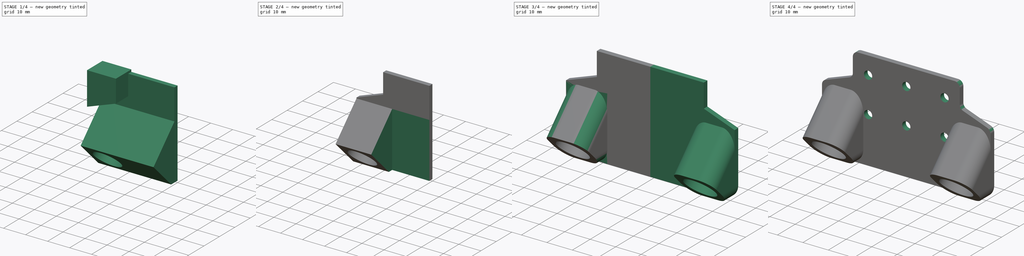
[diagram: build sequence overview — one tinted view per stage of 4, left to right]
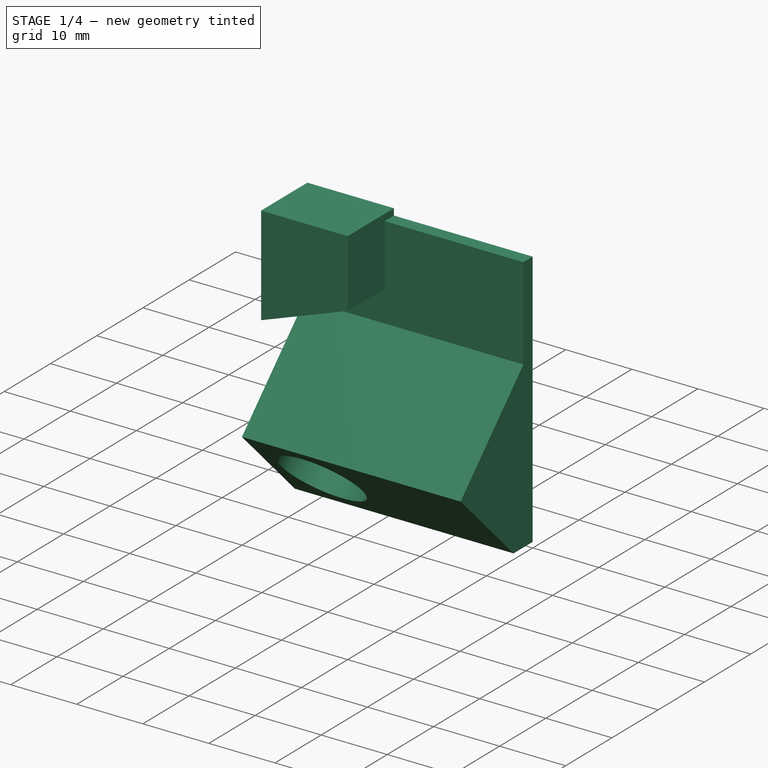
[diagram: stage 1 of 4 — iso view after this stage's code; geometry added in this stage tinted green]
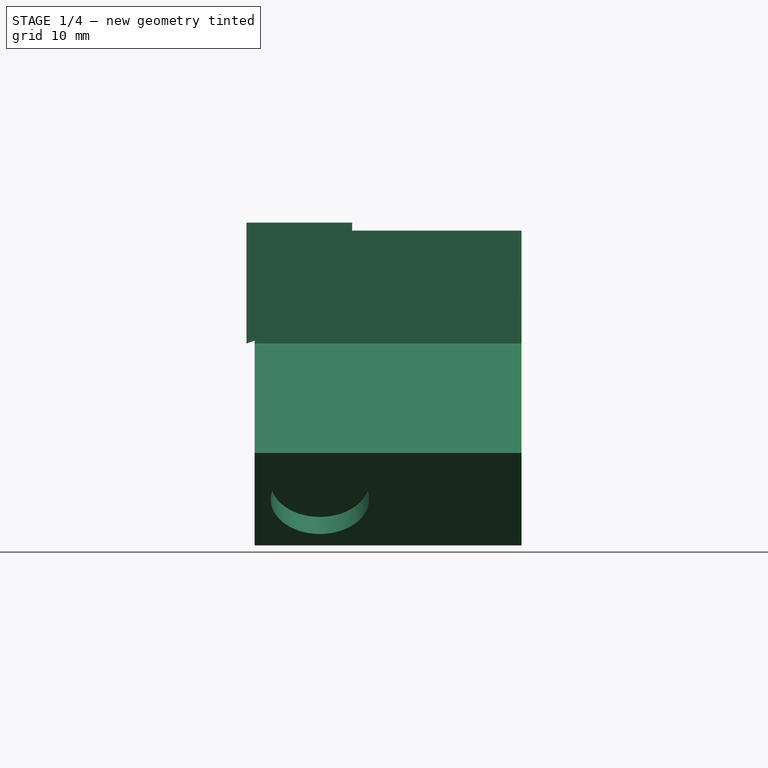
[diagram: stage 1 of 4 — front view after this stage's code; geometry added in this stage tinted green]
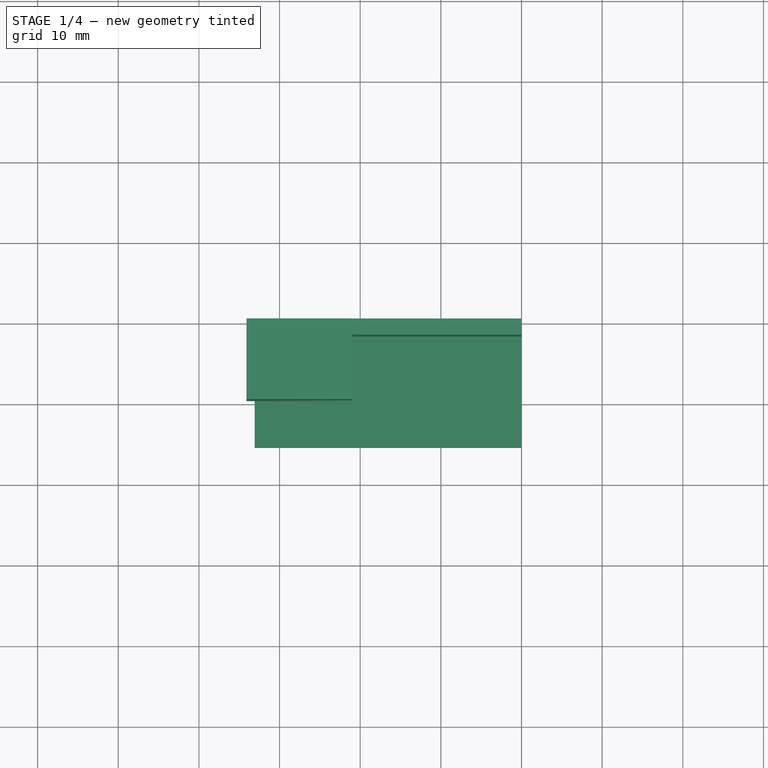
[diagram: stage 1 of 4 — top view after this stage's code; geometry added in this stage tinted green]
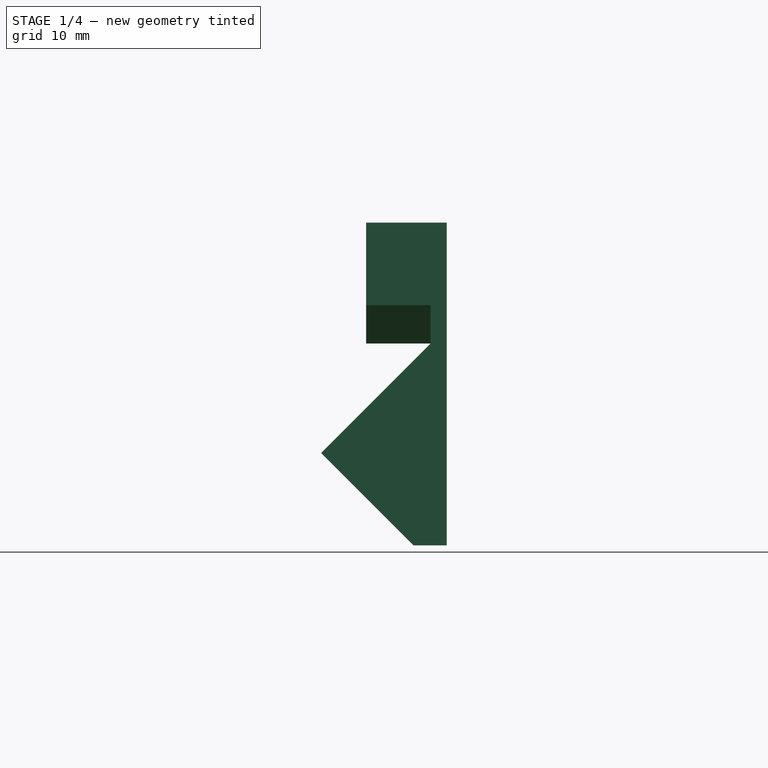
[diagram: stage 1 of 4 — right view after this stage's code; geometry added in this stage tinted green]
FCSTD DOCUMENT  (FreeCAD 0.16R6712 (Git))
Label: carriage_magnet_holder_v1-12mm
License: All rights reserved
LicenseURL: http://en.wikipedia.org/wiki/All_rights_reserved
objects: Sketcher::SketchObject×9, Spreadsheet::Sheet×6, PartDesign::Pad×4, Part::Feature×3, App::DocumentObjectGroup×3, Part::MultiFuse×2, Part::Cut×2, PartDesign::Fillet×2, PartDesign::Pocket×1, Part::Mirroring×1
note: 29 computed .brp shape members not serialized (recipe doc carries the construction recipe); baked Part::Feature solids carry a one-line shape summary decoded from their .brp

FEATURE [Part::Feature] Fillet001001  label="universal_carriage-v1"
  Placement = pos=(0,11,0) rot=(0,0,1;0rad)
  shape: bbox 81 x 14.59 x 24 mm, 128 faces (baked)
FEATURE [Part::Feature] Fillet001003001  label="belt_holder-v1"
  Placement = pos=(0,5,0) rot=(0,0,1;3.14159rad)
  shape: bbox 37 x 10 x 24 mm, 212 faces (baked)
FEATURE [App::DocumentObjectGroup] Group  label="External"
  Group = -> [Fillet001001,Fillet001003001]
FEATURE [Sketcher::SketchObject] Sketch  label="Screw_position_markers"
  Placement = pos=(0,0,0) rot=(1,0,0;1.5708rad)
  expr: Constraints[11] = Screw_M3.thread_r
  sketch-geometry (7):
    g0: Circle CenterX=-15 CenterY=7 CenterZ=0 NormalX=0 NormalY=0 NormalZ=1 Radius=1.6
    g1: Circle CenterX=0 CenterY=7 CenterZ=0 NormalX=0 NormalY=0 NormalZ=1 Radius=1.6
    g2: Circle CenterX=15 CenterY=7 CenterZ=0 NormalX=0 NormalY=0 NormalZ=1 Radius=1.6
    g3: Circle CenterX=15 CenterY=-7 CenterZ=0 NormalX=0 NormalY=0 NormalZ=1 Radius=1.6
    g4: Circle CenterX=0 CenterY=-7 CenterZ=0 NormalX=0 NormalY=0 NormalZ=1 Radius=1.6
    g5: Circle CenterX=-15 CenterY=-7 CenterZ=0 NormalX=0 NormalY=0 NormalZ=1 Radius=1.6
    g6: LineSegment [constr] StartX=-15 StartY=7 StartZ=0 EndX=0 EndY=7 EndZ=0
  constraints (17):
    c: PointOnObject(g1,g-2)
    c: PointOnObject(g4,g-2)
    c: Symmetric(g5,g0,g-1)
    c: Symmetric(g4,g1,g-1)
    c: Symmetric(g3,g2,g-1)
    c: Symmetric(g0,g2,g-2)
    c: Coincident(g6,g0)
    c: Coincident(g6,g1)
    c: Horizontal(g6)
    c: DistanceY(g4,g1) = 14
    c: DistanceX(g6,g6) = 15
    c: Radius(g0) = 1.6
    c: Equal(g0,g5)
    c: Equal(g0,g4)
    c: Equal(g0,g1)
    c: Equal(g0,g2)
    c: Equal(g0,g3)
FEATURE [Spreadsheet::Sheet] Spreadsheet007  label="Screw_M3"
  cells = A1=Name; B1=Value; C1=Description; A2=Designation; B2=M3x10; A3=T; B3(T)==0.1mm + Printer.T; C3=Screw dimension tolerance (including printer T); A4=ideal_r; B4(ideal_r)==1.5mm; C4=Ideal screw thread radius; A5=thread_r; B5(thread_r)==ideal_r + T; C5=Pass through hole radius; A6=thread_length; B6(thread_length)==10mm; C6=Screw thread length; A7=head_r; B7(head_r)==5.7mm / 2 + T; C7=Screw head radius; A8=head_length; B8(head_length)==3mm; C8=Screw head length (height); A9=head_clearance; B9(head_clearance)==10mm; C9=Needed clearance above screw head; A10=head_slope_length; B10(head_slope_length)==ceil((head_r - thread_r) / Printer.default_layer) * Printer.default_layer; C10=45deg slop to make it easier to print; A11=arm_r; B11(arm_r)==head_r + Printer.wall_4d; C11=Holder arm going around head; A12=arm_min_r; B12(arm_min_r)==thread_r + Printer.wall_2d; C12=Holder arm going around thread only; A13=arm_thickness; B13(arm_thickness)==5mm; C13=Suggested arm thickness; A14=cut_r; B14(cut_r)==ideal_r - 0.05mm; C14=Planar threaded hole cut radius; A15=vcut_r; B15(vcut_r)==floor(cut_r / Printer.default_layer) * Printer.default_layer; C15=Vertical threaded hole cut radius
FEATURE [Spreadsheet::Sheet] Spreadsheet005  label="Screw_M6"
  cells = A1=Name; B1=Value; C1=Description; A2=Designation; B2=M6x25; A3=T; B3(T)==0.1mm + Printer.T; C3=Screw dimension tolerance (including printer T); A4=ideal_r; B4(ideal_r)==3mm; C4=Ideal screw thread radius; A5=thread_r; B5(thread_r)==3mm + T; C5=Pass through hole radius; A6=thread_length; B6(thread_length)==25mm; C6=Screw thread length; A7=head_r; B7(head_r)==5mm + T; C7=Screw head radius; A8=head_length; B8(head_length)==4mm; C8=Screw head length (height); A9=arm_r; B9(arm_r)==head_r + Printer.wall_4d; C9=Holder arm going around head; A10=arm_min_r; B10(arm_min_r)==thread_r + Printer.wall_2d; C10=Holder arm going around thread only; A11=arm_thickness; B11(arm_thickness)==7mm; C11=Suggested arm thickness; A12=cut_r; B12(cut_r)==2.9mm; C12=Planar threaded hole cut radius; A13=vcut_r; B13(vcut_r)==floor(cut_r / Printer.default_layer) * Printer.default_layer; C13=Vertical threaded hole cut radius
FEATURE [Spreadsheet::Sheet] Spreadsheet006  label="Nut_M6"
  cells = A1=Name; B1=Value; C1=Description; A2=T; B2(T)==0mm + Printer.T; C2=Dimension tolerance (including printer T); A3=outer_r; B3(outer_r)==11.2mm / 2; C3=Outer most nut radius; A4=width; B4(width)==10mm; C4=Nut side width; A5=thickness; B5(thickness)==5mm; C5=Nut thickness (height); A6=num_of_sides; B6(num_of_sides)=6; C6=Number of sides
FEATURE [Spreadsheet::Sheet] Spreadsheet008  label="Nut_M3"
  cells = A1=Name; B1=Value; C1=Description; A2=T; B2(T)==0mm + Printer.T; C2=Dimension tolerance (including printer T); A3=outer_r; B3(outer_r)==6.5mm / 2 + T; C3=Outer most nut radius; A4=width; B4(width)==5.5mm + T; C4=Nut side width; A5=thickness; B5(thickness)==2.5mm; C5=Nut thickness (height); A6=num_of_sides; B6(num_of_sides)=6; C6=Number of sides
FEATURE [Spreadsheet::Sheet] Spreadsheet011  label="Printer"
  cells = A1=Name; B1=Value; C1=Description; A2=printer; B2=Prusa i3 MK2; C2=Printer name; A3=T; B3(T)==0mm; C3=Dimensional deviation of XY axis; A4=T_v; B4(T_v)==0mm; C4=Dimensional deviation of Z axis; A5=T_max; B5(T_max)==0.4mm; C5=Maximal expected deviation; A6=nozzle_d; B6(nozzle_d)==0.4mm; C6=Nozzle diameter; A7=thinnes_wall; B7(thinnest_wall)==2 * nozzle_d; C7=Thinnest printable wall; A8=wall_2d; B8(wall_2d)==2 * nozzle_d; C8=2D wall without infill; A9=wall_3d; B9(wall_3d)==3 * nozzle_d; C9=3D wall without infill; A10=wall_4d; B10(wall_4d)==4 * nozzle_d; C10=4D wall without infill; A11=wall_5d; B11(wall_5d)==5 * nozzle_d; C11=5D wall without infill; A12=default_layer; B12(default_layer)==0.2mm; C12=Default printing layer height
FEATURE [Sketcher::SketchObject] Sketch001  label="Magnet_position_markers"
  Placement = pos=(0,-6,-10) rot=(-1,0,0;0.785398rad)
  sketch-geometry (3):
    g0: Circle CenterX=-25 CenterY=0 CenterZ=0 NormalX=0 NormalY=0 NormalZ=1 Radius=5
    g1: Circle CenterX=25 CenterY=0 CenterZ=0 NormalX=0 NormalY=0 NormalZ=1 Radius=5
    g2: LineSegment [constr] StartX=-25 StartY=0 StartZ=0 EndX=25 EndY=0 EndZ=0
  constraints (8):
    c: Coincident(g2,g0)
    c: Coincident(g2,g1)
    c: Horizontal(g2)
    c: Radius(g0) = 5
    c: Equal(g0,g1)
    c: Symmetric(g1,g0,g-2)
    c: DistanceX(g2,g2) = 50
    c: PointOnObject(g-1,g2)
FEATURE [App::DocumentObjectGroup] Group001  label="Helpers"
  Group = -> [Sketch,Sketch001]
FEATURE [Sketcher::SketchObject] Sketch002
  Placement = pos=(0,0,0) rot=(1,0,0;1.5708rad)
  sketch-geometry (6):
    g0: ArcOfCircle CenterX=-17.2473 CenterY=15.0552 CenterZ=0 NormalX=0 NormalY=0 NormalZ=1 Radius=1.88832 StartAngle=3.44251 EndAngle=6.00106
    g1: LineSegment StartX=-15.4336 StartY=14.5295 StartZ=0 EndX=-5.05831 EndY=17.6672 EndZ=0
    g2: LineSegment StartX=-21.0408 StartY=22.7044 StartZ=0 EndX=-2.81952 EndY=22.7044 EndZ=0
    g3: LineSegment StartX=-2.81952 StartY=22.7044 StartZ=0 EndX=-2.81952 EndY=17.6672 EndZ=0
    g4: LineSegment StartX=-2.81952 StartY=17.6672 StartZ=0 EndX=-21.0408 EndY=17.6672 EndZ=0
    g5: LineSegment StartX=-21.0408 StartY=17.6672 StartZ=0 EndX=-21.0408 EndY=22.7044 EndZ=0
  constraints (10):
    c: Coincident(g1,g0)
    c: Coincident(g2,g3)
    c: Coincident(g3,g4)
    c: Coincident(g4,g5)
    c: Coincident(g5,g2)
    c: Horizontal(g2)
    c: Horizontal(g4)
    c: Vertical(g3)
    c: Vertical(g5)
    c: PointOnObject(g1,g4)
FEATURE [Sketcher::SketchObject] Sketch003  label="Holder_profile"
  Placement = pos=(0,0,0) rot=(0.57735,0.57735,0.57735;2.0944rad)
  expr: Constraints[24] = Dimensions.magnet_thickness
  expr: Constraints[20] = (Dimensions.magnet_r + Dimensions.wall_thickness) * 2
  expr: Constraints[17] = Dimensions.base_thickness
  sketch-geometry (10):
    g0: LineSegment StartX=0 StartY=14 StartZ=0 EndX=0 EndY=-20.9103 EndZ=0
    g1: LineSegment [constr] StartX=0 StartY=-20.9103 StartZ=0 EndX=-4.12132 EndY=-25.0316 EndZ=0
    g2: LineSegment StartX=-4.12132 StartY=-25.0316 StartZ=0 EndX=-15.5765 EndY=-13.5765 EndZ=0
    g3: LineSegment StartX=-15.5765 StartY=-13.5765 StartZ=0 EndX=-2 EndY=0 EndZ=0
    g4: LineSegment StartX=-2 StartY=0 StartZ=0 EndX=-2 EndY=14 EndZ=0
    g5: LineSegment StartX=-2 StartY=14 StartZ=0 EndX=0 EndY=14 EndZ=0
    g6: LineSegment [constr] StartX=-9.84889 StartY=-19.304 StartZ=0 EndX=0 EndY=-9.45513 EndZ=0
    g7: LineSegment [constr] StartX=-2 StartY=0 StartZ=0 EndX=-2 EndY=-22.9103 EndZ=0
    g8: LineSegment StartX=-4.12132 StartY=-25.0316 StartZ=0 EndX=0 EndY=-25.0316 EndZ=0
    g9: LineSegment StartX=0 StartY=-25.0316 StartZ=0 EndX=0 EndY=-20.9103 EndZ=0
  constraints (30):
    c: PointOnObject(g0,g-2)
    c: PointOnObject(g0,g-2)
    c: Coincident(g0,g1)
    c: Coincident(g1,g2)
    c: Coincident(g2,g3)
    c: Coincident(g3,g4)
    c: Vertical(g4)
    c: Coincident(g4,g5)
    c: Coincident(g5,g0)
    c: Horizontal(g5)
    c: PointOnObject(g6,g2)
    c: PointOnObject(g6,g0)
    c: Angle(g6,g0) = 0.785398
    c: Perpendicular(g6,g2)
    c: Symmetric(g2,g1,g6)
    c: Parallel(g3,g6)
    c: Parallel(g6,g1)
    c: DistanceX(g5,g5) = 2
    c: DistanceY(g-1,g0) = 14
    c: PointOnObject(g3,g-1)
    c: Distance(g2) = 16.2
    c: Coincident(g7,g3)
    c: PointOnObject(g7,g1)
    c: Vertical(g7)
    c: Distance(g7,g1) = 3
    c: Coincident(g1,g8)
    c: PointOnObject(g8,g-2)
    c: Horizontal(g8)
    c: Coincident(g8,g9)
    c: Coincident(g9,g0)
FEATURE [Spreadsheet::Sheet] Spreadsheet  label="Dimensions"
  cells = A1=Name; B1=Value; C1=Description; A2=wall_thickness; B2(wall_thickness)==2mm; A3=base_thickness; B3(base_thickness)==2mm; A5=arm_distance; B5(arm_distance)==50mm; C5=Distance between a pair of head arms ; A7=magnet_r; B7(magnet_r)==6.1mm; A8=magnet_thickness; B8(magnet_thickness)==3mm
FEATURE [App::DocumentObjectGroup] Group002  label="Documents"
  Group = -> [Spreadsheet011,Spreadsheet007,Spreadsheet005,Spreadsheet006,Spreadsheet008,Spreadsheet]
FEATURE [PartDesign::Pad] Pad
  Length = 33.1
  Length2 = 100
  Placement = pos=(0,0,0) rot=(0.57735,0.57735,0.57735;2.0944rad)
  Reversed = true
  Sketch = -> Sketch003
  Type = 0
  expr: Length = Dimensions.arm_distance / 2 + Dimensions.magnet_r + Dimensions.wall_thickness
FEATURE [Sketcher::SketchObject] Sketch006
  Placement = pos=(0,0,0) rot=(1,0,0;1.5708rad)
  expr: Constraints[9] = Dimensions.arm_distance / 2 + Dimensions.magnet_r + Dimensions.wall_thickness + 1mm
  sketch-geometry (4):
    g0: LineSegment StartX=-21 StartY=4.76801 StartZ=0 EndX=-21 EndY=15 EndZ=0
    g1: LineSegment StartX=-21 StartY=15 StartZ=0 EndX=-34.1 EndY=15 EndZ=0
    g2: LineSegment StartX=-34.1 StartY=15 StartZ=0 EndX=-34.1 EndY=0 EndZ=0
    g3: LineSegment StartX=-34.1 StartY=0 StartZ=0 EndX=-21 EndY=4.76801 EndZ=0
  constraints (12):
    c: Vertical(g0)
    c: Coincident(g0,g1)
    c: Horizontal(g1)
    c: Coincident(g1,g2)
    c: PointOnObject(g2,g-1)
    c: Vertical(g2)
    c: Coincident(g2,g3)
    c: Coincident(g0,g3)
    c: Angle(g3,g-1) = 2.79253
    c: DistanceX(g2,g-1) = 34.1
    c: DistanceY(g-1,g0) = 15
    c: DistanceX(g0,g-1) = 21
FEATURE [PartDesign::Pad] Pad002
  Length = 10
  Length2 = 100
  Placement = pos=(0,0,0) rot=(1,0,0;1.5708rad)
  Sketch = -> Sketch006
  Type = 0
FEATURE [Sketcher::SketchObject] Sketch007
  ExternalGeometry = -> [Pad]
  Placement = pos=(0,-14.5765,-14.5765) rot=(0.678598,0.678598,-0.281085;2.59356rad)
  Support = -> Pad [Face1]
  expr: Constraints[4] = Dimensions.magnet_r + Dimensions.wall_thickness
  expr: Constraints[2] = Dimensions.magnet_r + Dimensions.wall_thickness
  expr: Constraints[3] = Dimensions.arm_distance / 2
  expr: Constraints[1] = Dimensions.magnet_r
  sketch-geometry (2):
    g0: Circle [constr] CenterX=6.68579 CenterY=-25 CenterZ=0 NormalX=0 NormalY=0 NormalZ=1 Radius=8.1
    g1: Circle CenterX=6.68579 CenterY=-25 CenterZ=0 NormalX=0 NormalY=0 NormalZ=1 Radius=6.1
  constraints (5):
    c: Coincident(g1,g0)
    c: Radius(g1) = 6.1
    c: Radius(g0) = 8.1
    c: DistanceY(g0,g-1) = 25
    c: DistanceX(g-3,g0) = 8.1
FEATURE [Sketcher::SketchObject] Sketch008
  ExternalGeometry = -> [Pad]
  Placement = pos=(0,-14.5765,-14.5765) rot=(0.678598,0.678598,-0.281085;2.59356rad)
  Support = -> Pad [Face1]
  expr: Constraints[4] = Dimensions.magnet_r + Dimensions.wall_thickness
  expr: Constraints[2] = Dimensions.magnet_r + Dimensions.wall_thickness
  expr: Constraints[3] = Dimensions.arm_distance / 2
  expr: Constraints[1] = Dimensions.magnet_r
  sketch-geometry (2):
    g0: Circle CenterX=6.68579 CenterY=-25 CenterZ=0 NormalX=0 NormalY=0 NormalZ=1 Radius=8.1
    g1: Circle CenterX=6.68579 CenterY=-25 CenterZ=0 NormalX=0 NormalY=0 NormalZ=1 Radius=6.1
  constraints (5):
    c: Coincident(g1,g0)
    c: Radius(g1) = 6.1
    c: Radius(g0) = 8.1
    c: DistanceY(g0,g-1) = 25
    c: DistanceX(g-3,g0) = 8.1
FEATURE [PartDesign::Pocket] Pocket
  Length = 3
  Placement = pos=(0,0,0) rot=(0.57735,0.57735,0.57735;2.0944rad)
  Sketch = -> Sketch007
  Type = 0
  expr: Length = Dimensions.magnet_thickness
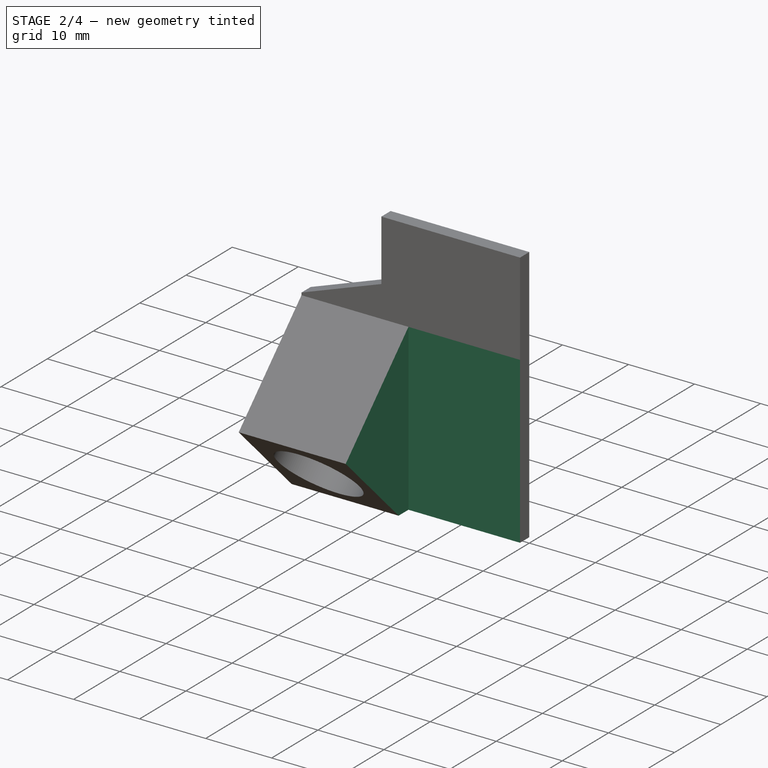
[diagram: stage 2 of 4 — iso view after this stage's code; geometry added in this stage tinted green]
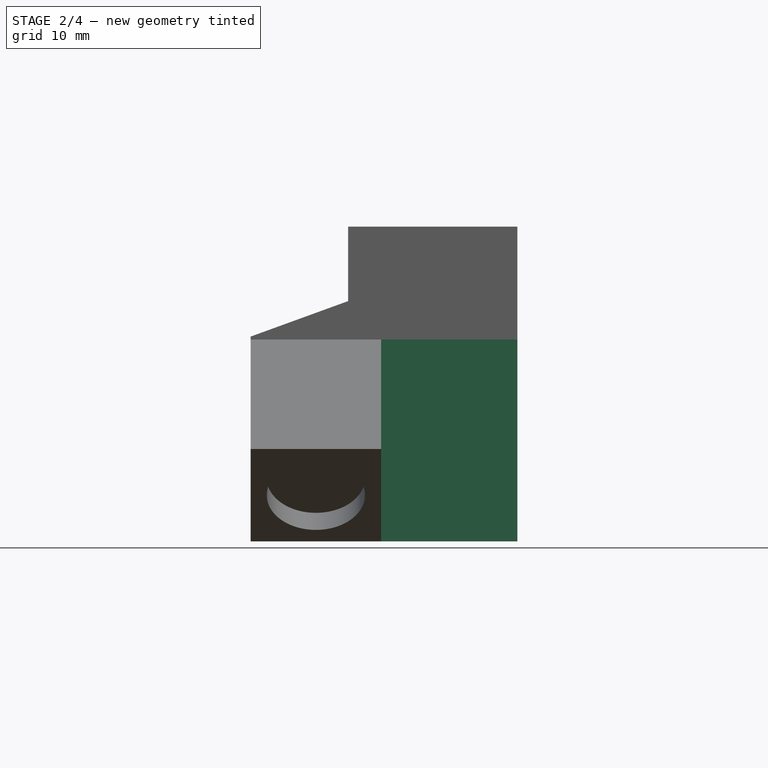
[diagram: stage 2 of 4 — front view after this stage's code; geometry added in this stage tinted green]
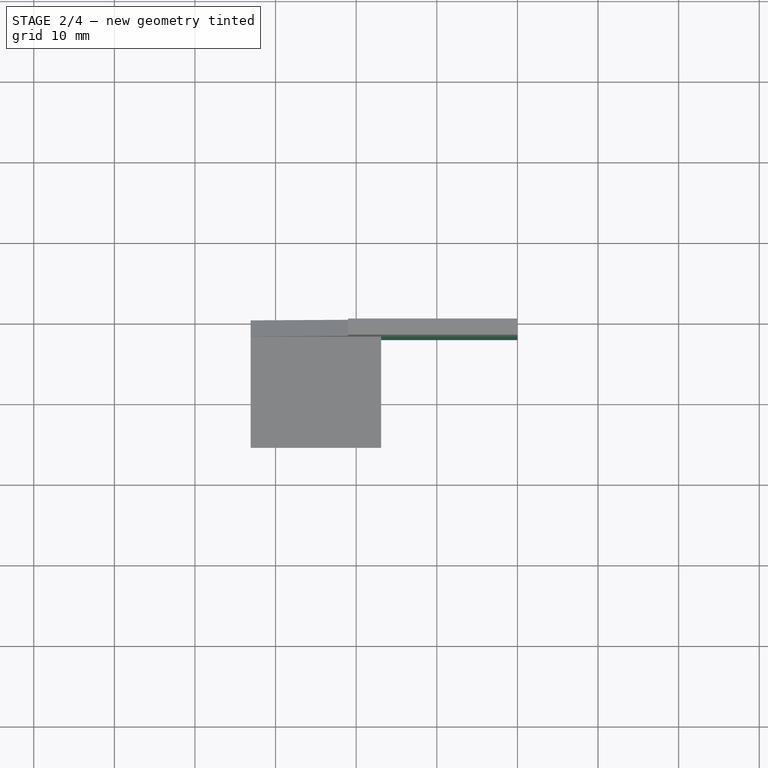
[diagram: stage 2 of 4 — top view after this stage's code; geometry added in this stage tinted green]
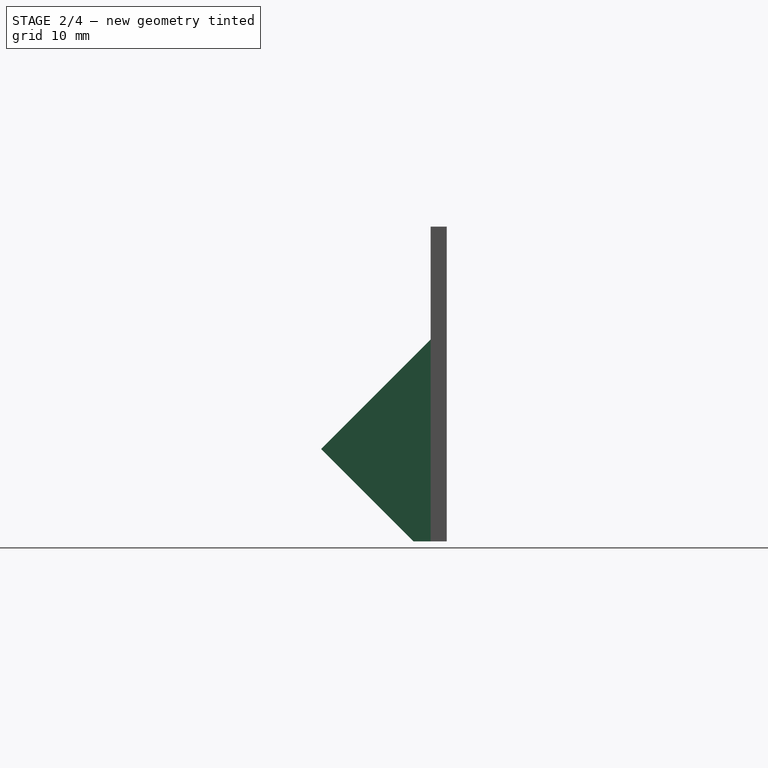
[diagram: stage 2 of 4 — right view after this stage's code; geometry added in this stage tinted green]
FEATURE [Sketcher::SketchObject] Sketch005
  expr: Constraints[10] = Dimensions.base_thickness
  expr: Constraints[9] = Dimensions.arm_distance - Dimensions.magnet_r * 2 - Dimensions.wall_thickness * 2
  sketch-geometry (4):
    g0: LineSegment StartX=-16.9 StartY=-2 StartZ=0 EndX=16.9 EndY=-2 EndZ=0
    g1: LineSegment StartX=16.9 StartY=-2 StartZ=0 EndX=16.9 EndY=-22 EndZ=0
    g2: LineSegment StartX=16.9 StartY=-22 StartZ=0 EndX=-16.9 EndY=-22 EndZ=0
    g3: LineSegment StartX=-16.9 StartY=-22 StartZ=0 EndX=-16.9 EndY=-2 EndZ=0
  constraints (12):
    c: Coincident(g0,g1)
    c: Coincident(g1,g2)
    c: Coincident(g2,g3)
    c: Coincident(g3,g0)
    c: Horizontal(g0)
    c: Horizontal(g2)
    c: Vertical(g1)
    c: Vertical(g3)
    c: Symmetric(g2,g1,g-2)
    c: DistanceX(g2,g2) = 33.8
    c: DistanceY(g0,g-1) = 2
    c: DistanceY(g3,g3) = 20
FEATURE [PartDesign::Pad] Pad001
  Length = 30
  Length2 = 100
  Reversed = true
  Sketch = -> Sketch005
  Type = 0
FEATURE [Part::MultiFuse] Fusion
  Shapes = -> [Pad001,Pad002]
FEATURE [Part::Cut] Cut
  Base = -> Pocket
  Tool = -> Fusion
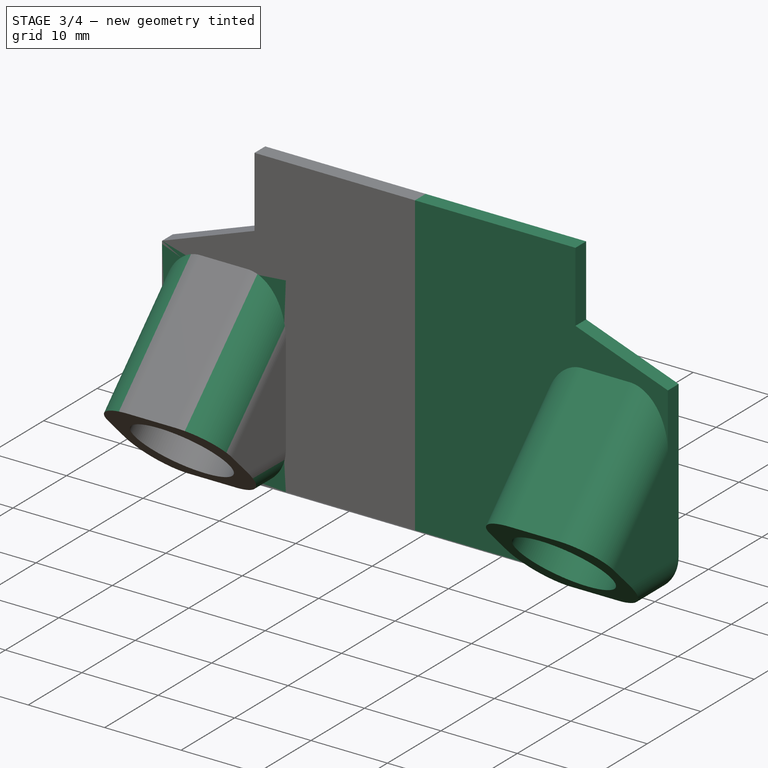
[diagram: stage 3 of 4 — iso view after this stage's code; geometry added in this stage tinted green]
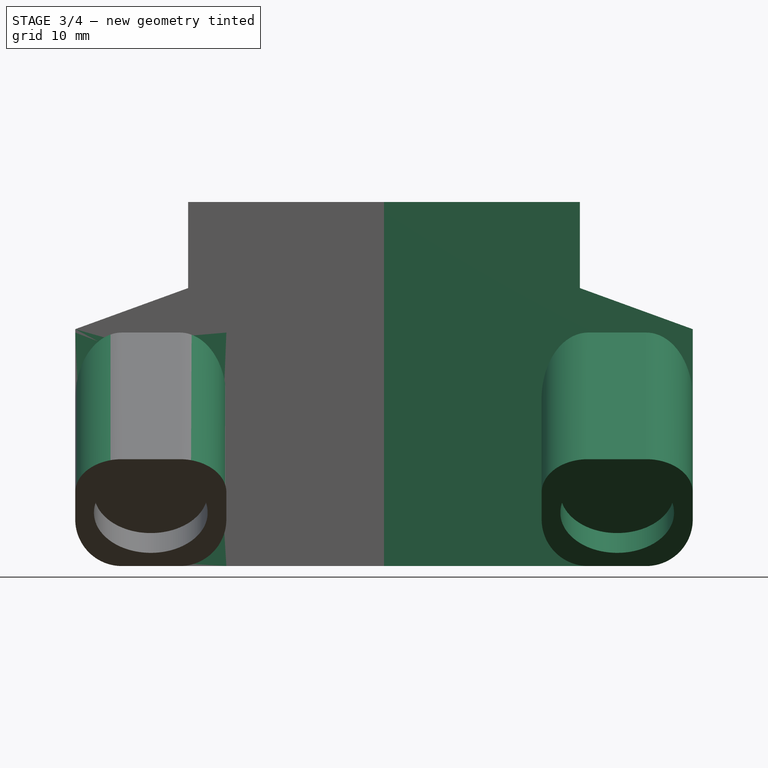
[diagram: stage 3 of 4 — front view after this stage's code; geometry added in this stage tinted green]
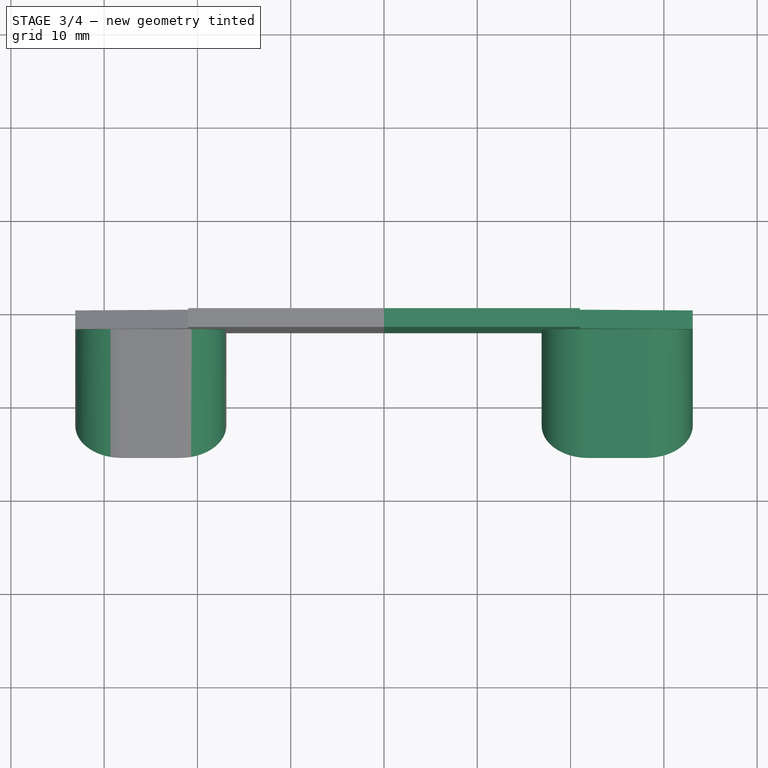
[diagram: stage 3 of 4 — top view after this stage's code; geometry added in this stage tinted green]
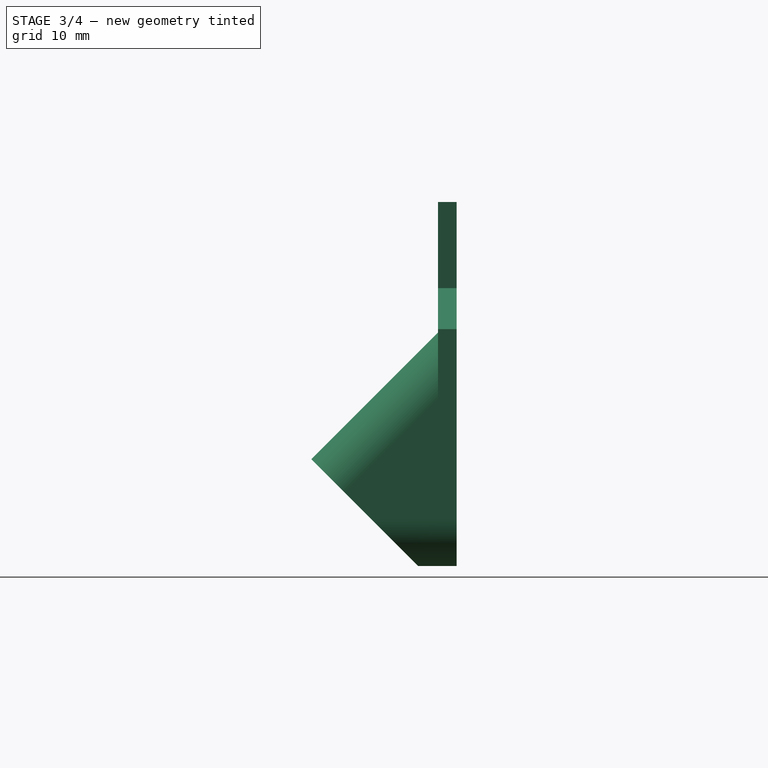
[diagram: stage 3 of 4 — right view after this stage's code; geometry added in this stage tinted green]
FEATURE [PartDesign::Fillet] Fillet
  Base = -> Cut [Edge10,Edge8,Edge15,Edge7]
  Radius = 5
FEATURE [Part::Mirroring] Part__Mirroring  label="Fillet (Mirror #1)"
  Base = (0,0,0)
  Normal = (1,0,0)
  Source = -> Fillet
FEATURE [Part::MultiFuse] Fusion001
  Shapes = -> [Part__Mirroring,Fillet]
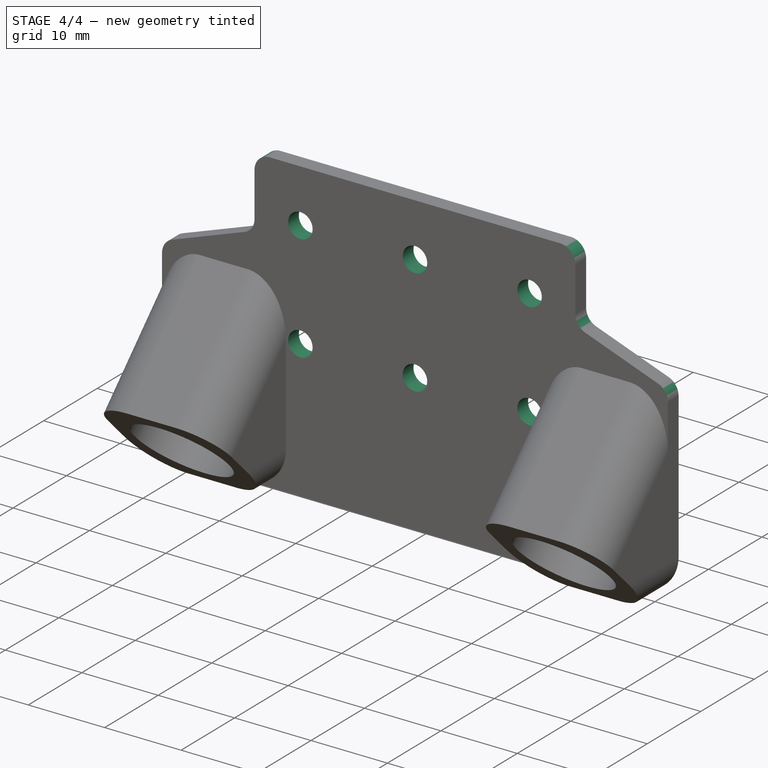
[diagram: stage 4 of 4 — iso view after this stage's code; geometry added in this stage tinted green]
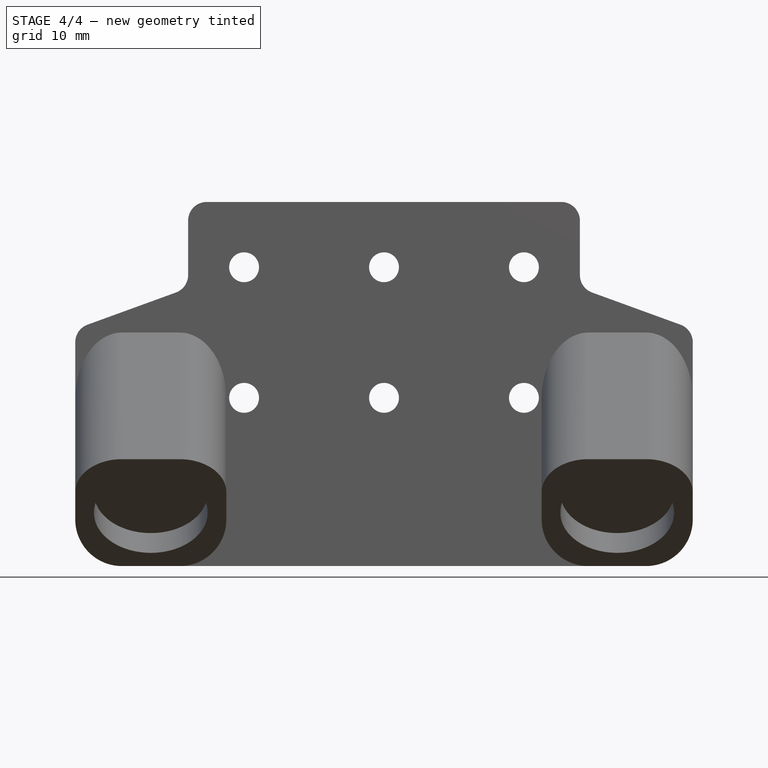
[diagram: stage 4 of 4 — front view after this stage's code; geometry added in this stage tinted green]
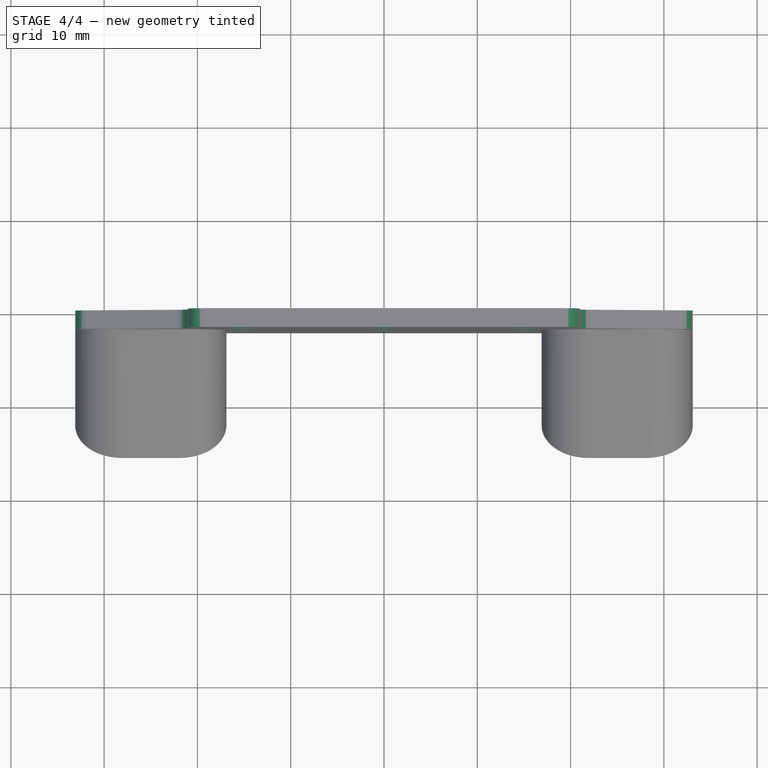
[diagram: stage 4 of 4 — top view after this stage's code; geometry added in this stage tinted green]
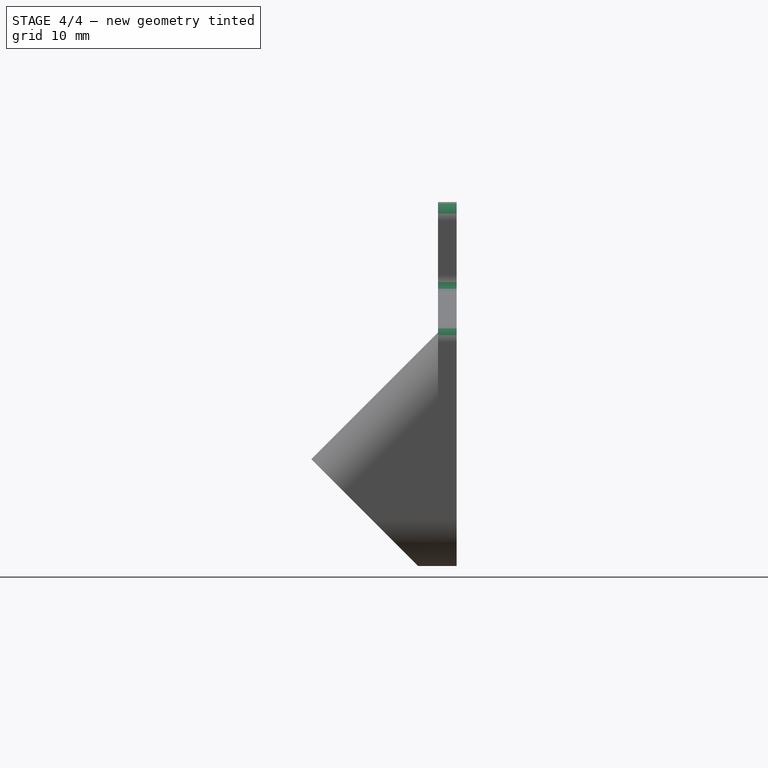
[diagram: stage 4 of 4 — right view after this stage's code; geometry added in this stage tinted green]
FEATURE [Sketcher::SketchObject] Sketch009  label="Screw_position_markers"
  Placement = pos=(0,0,0) rot=(1,0,0;1.5708rad)
  expr: Constraints[11] = Screw_M3.thread_r
  sketch-geometry (7):
    g0: Circle CenterX=-15 CenterY=7 CenterZ=0 NormalX=0 NormalY=0 NormalZ=1 Radius=1.6
    g1: Circle CenterX=0 CenterY=7 CenterZ=0 NormalX=0 NormalY=0 NormalZ=1 Radius=1.6
    g2: Circle CenterX=15 CenterY=7 CenterZ=0 NormalX=0 NormalY=0 NormalZ=1 Radius=1.6
    g3: Circle CenterX=15 CenterY=-7 CenterZ=0 NormalX=0 NormalY=0 NormalZ=1 Radius=1.6
    g4: Circle CenterX=0 CenterY=-7 CenterZ=0 NormalX=0 NormalY=0 NormalZ=1 Radius=1.6
    g5: Circle CenterX=-15 CenterY=-7 CenterZ=0 NormalX=0 NormalY=0 NormalZ=1 Radius=1.6
    g6: LineSegment [constr] StartX=-15 StartY=7 StartZ=0 EndX=0 EndY=7 EndZ=0
  constraints (17):
    c: PointOnObject(g1,g-2)
    c: PointOnObject(g4,g-2)
    c: Symmetric(g5,g0,g-1)
    c: Symmetric(g4,g1,g-1)
    c: Symmetric(g3,g2,g-1)
    c: Symmetric(g0,g2,g-2)
    c: Coincident(g6,g0)
    c: Coincident(g6,g1)
    c: Horizontal(g6)
    c: DistanceY(g4,g1) = 14
    c: DistanceX(g6,g6) = 15
    c: Radius(g0) = 1.6
    c: Equal(g0,g5)
    c: Equal(g0,g4)
    c: Equal(g0,g1)
    c: Equal(g0,g2)
    c: Equal(g0,g3)
FEATURE [PartDesign::Pad] Pad003
  Length = 10
  Length2 = 100
  Placement = pos=(0,0,0) rot=(1,0,0;1.5708rad)
  Sketch = -> Sketch009
  Type = 0
FEATURE [Part::Cut] Cut001
  Base = -> Fusion001
  Tool = -> Pad003
FEATURE [PartDesign::Fillet] Fillet001003002
  Base = -> Cut001 [Edge119,Edge118,Edge117,Edge93,Edge70,Edge31]
  Radius = 2
FEATURE [Part::Feature] Fillet001003002001  label="Fillet001003002"
  shape: bbox 66.2 x 17.11 x 39.03 mm, 40 faces (baked)
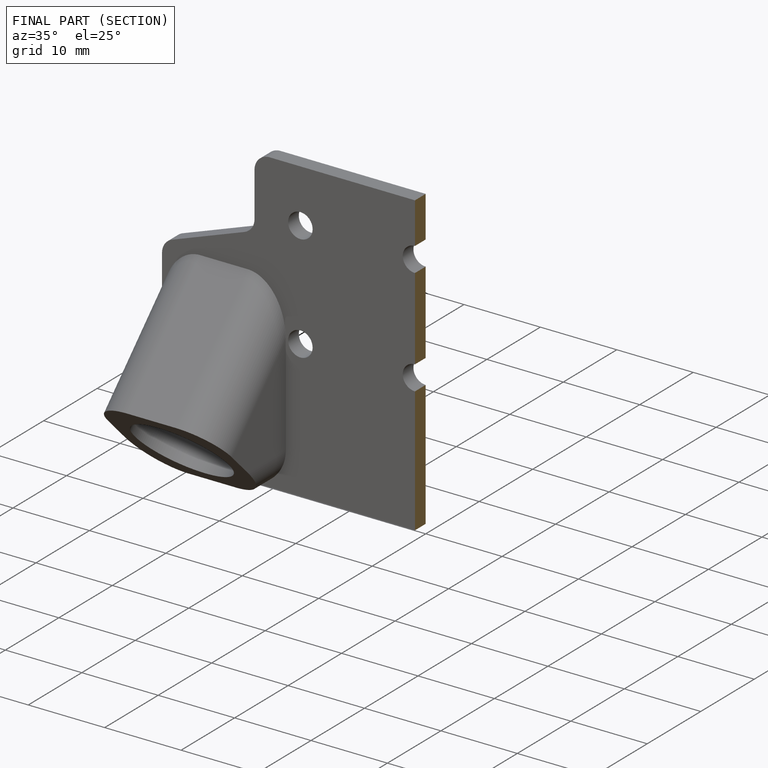
[diagram: finished part — half-section view (interior)]
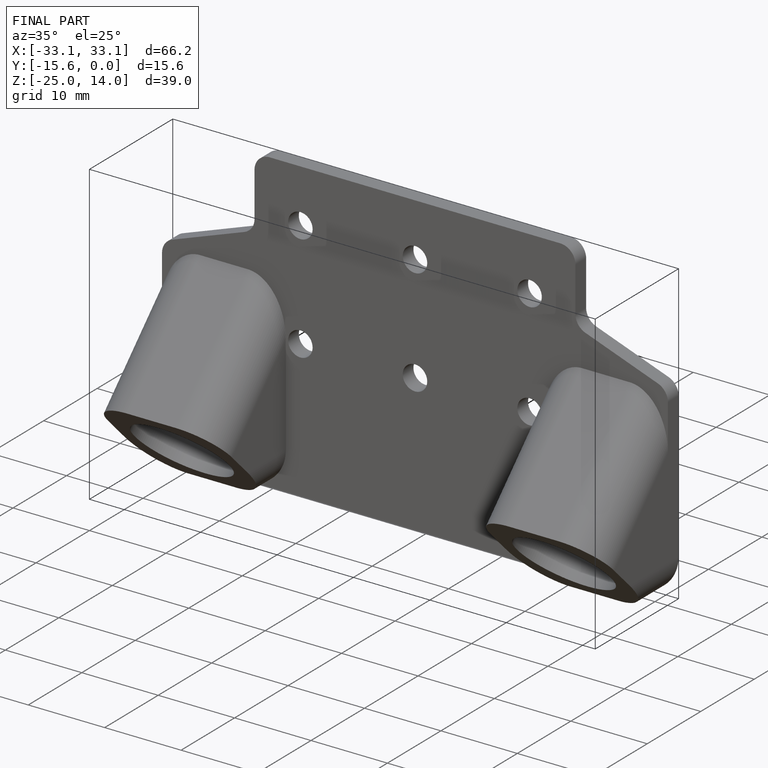
[diagram: finished part — iso view with bounding-box wireframe]
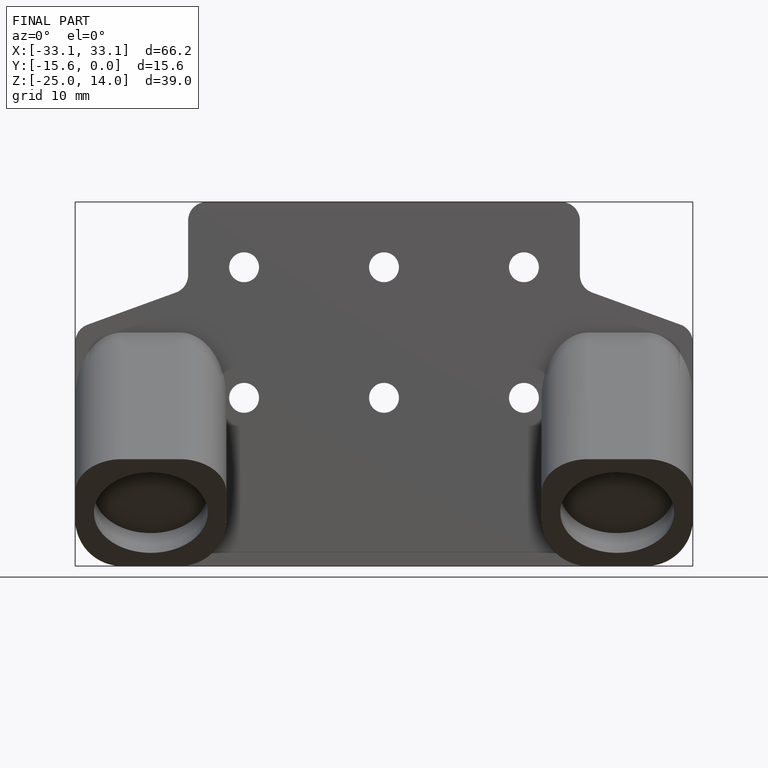
[diagram: finished part — front view with bounding-box wireframe]
